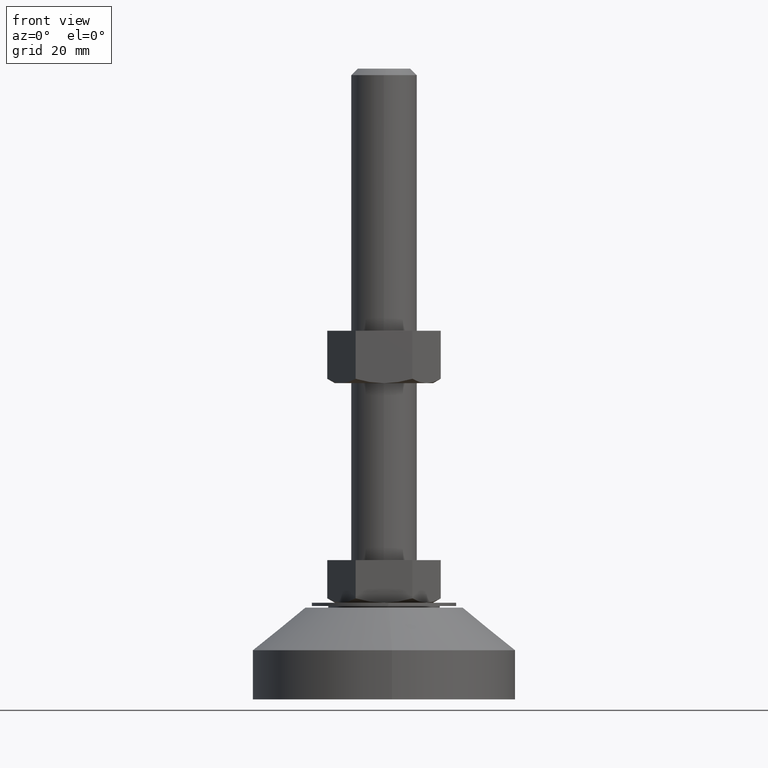
[diagram: clean part render]
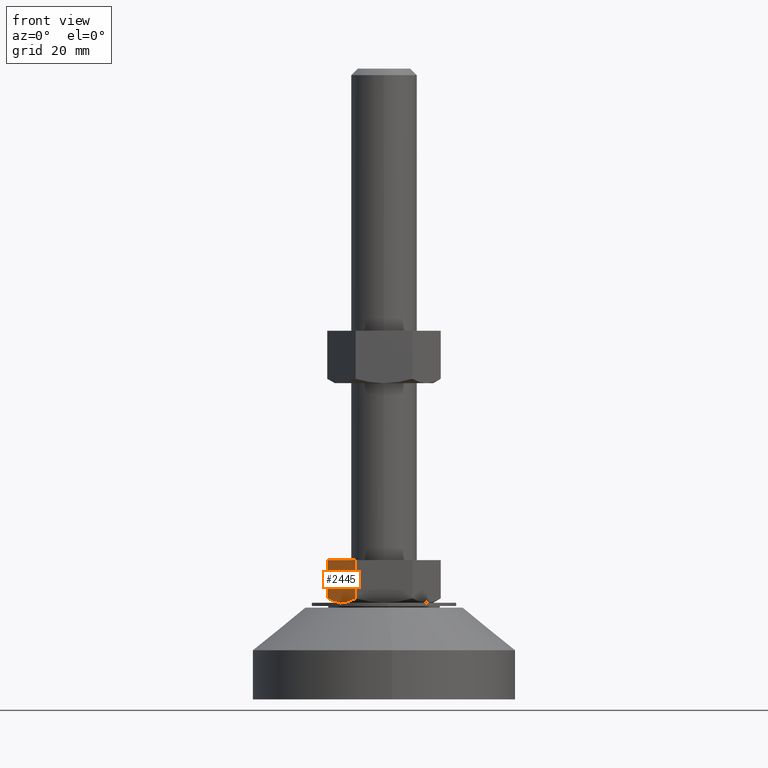
[diagram: same view with one face highlighted and labeled with its STEP entity id]
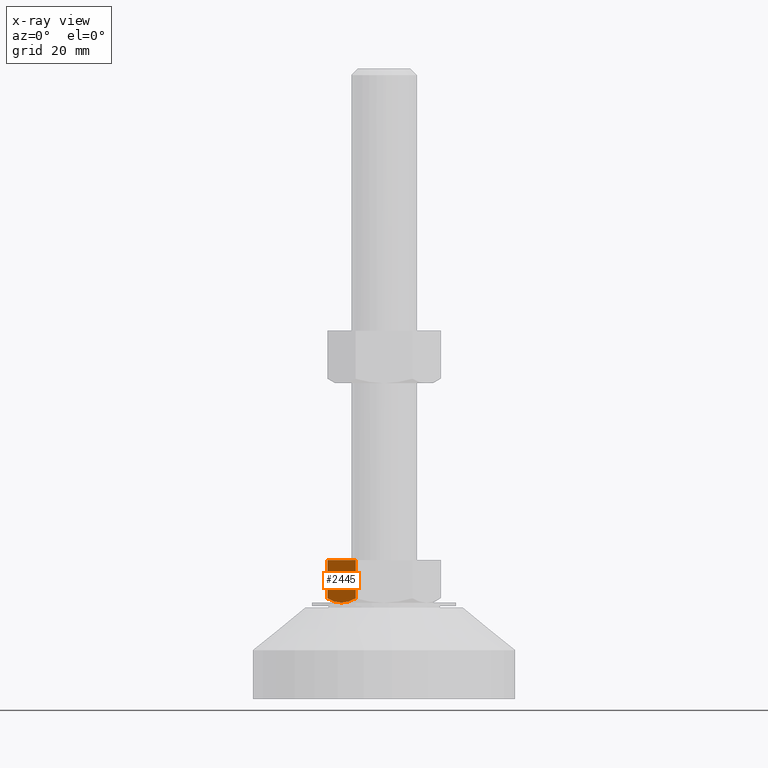
[diagram: x-ray of the same camera — body ghosted, the highlighted face saturated]
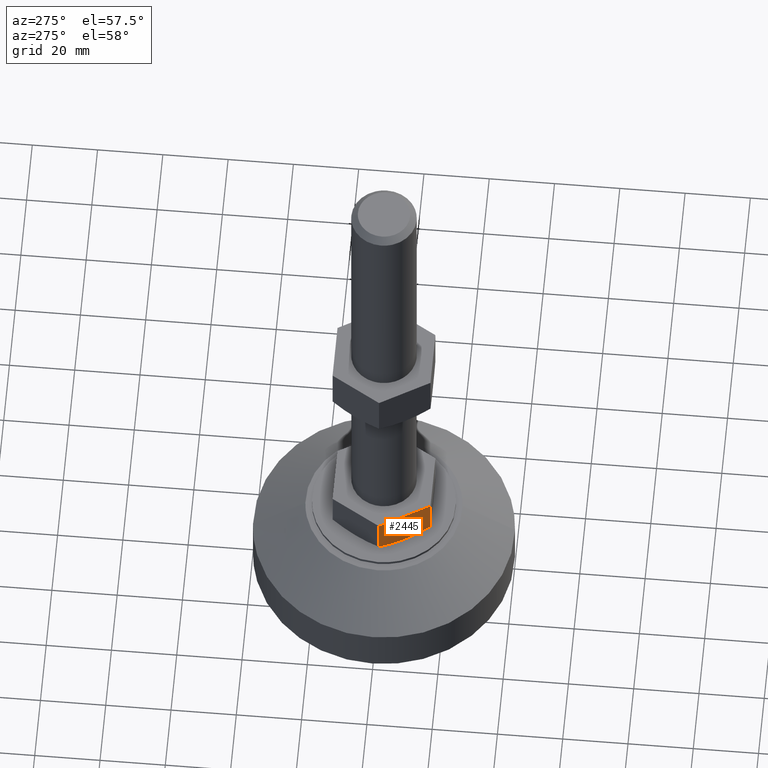
[diagram: same view with one face highlighted and labeled with its STEP entity id]
A machine part, front view. The second image highlights one B-rep face of the part: STEP entity #2445.
The next image is the same camera in x-ray: the body ghosted, the highlighted face saturated — about 0% of this face is hidden behind the body in this view.
A second angle (auxiliary view) of the same face is appended — the face is thin or edge-on in the first view.
In plain terms, the highlighted face is a freeform B-spline surface patch.
Its self-contained STEP definition (entity closure, byte-faithful):
#2214=CARTESIAN_POINT('',(-17.320508075689450,-5.684342E-014,42.500000000000000));
#2215=VERTEX_POINT('',#2214);
#2221=CARTESIAN_POINT('',(-8.660254037844871,-15.0,42.500000000000000));
#2222=VERTEX_POINT('',#2221);
#2223=CARTESIAN_POINT('',(-17.320508075689450,-5.684342E-014,42.500000000000000));
#2224=CARTESIAN_POINT('',(-8.660254037844871,-15.0,42.500000000000000));
#2225=QUASI_UNIFORM_CURVE('',1,(#2223,#2224),.UNSPECIFIED.,.F.,.U.);
#2226=EDGE_CURVE('',#2215,#2222,#2225,.T.);
#2357=CARTESIAN_POINT('',(-17.320508075688949,0.0,30.839745962165050));
#2358=VERTEX_POINT('',#2357);
#2374=CARTESIAN_POINT('',(-17.320508075689450,-5.684342E-014,42.500000000000000));
#2375=CARTESIAN_POINT('',(-17.320508075688949,0.0,30.839745962165050));
#2376=QUASI_UNIFORM_CURVE('',1,(#2374,#2375),.UNSPECIFIED.,.F.,.U.);
#2377=EDGE_CURVE('',#2215,#2358,#2376,.T.);
#2399=CARTESIAN_POINT('',(-8.227674365439791,-15.749249970927140,28.850650025196529));
#2400=CARTESIAN_POINT('',(-17.753087980380482,0.749250373258482,28.850650025196529));
#2401=CARTESIAN_POINT('',(-8.227674365439791,-15.749249970927140,43.149350323490637));
#2402=CARTESIAN_POINT('',(-17.753087980380482,0.749250373258482,43.149350323490637));
#2403=B_SPLINE_SURFACE_WITH_KNOTS('',1,1,((#2399,#2401),(#2400,#2402)),.UNSPECIFIED.,.F.,.F.,.U.,(2,2),(2,2),(0.0,19.050827229881399),(0.0,14.298700298294120),.UNSPECIFIED.);
#2404=CARTESIAN_POINT('',(-8.660254037844780,-15.0,30.839745962165050));
#2405=VERTEX_POINT('',#2404);
#2406=CARTESIAN_POINT('',(-12.990381056766960,-7.500000000000200,29.500000000000000));
#2407=VERTEX_POINT('',#2406);
#2408=CARTESIAN_POINT('',(-8.660254037844780,-15.0,30.839745962165050));
#2409=CARTESIAN_POINT('',(-9.367281759441104,-13.775392063835710,30.431543316767598));
#2410=CARTESIAN_POINT('',(-10.079464158776061,-12.541855963931241,30.095110476246081));
#2411=CARTESIAN_POINT('',(-11.158877247785840,-10.672257651411440,29.745558985832080));
#2412=CARTESIAN_POINT('',(-11.520542644587970,-10.045834808810600,29.654953438834660));
#2413=CARTESIAN_POINT('',(-12.248085348084780,-8.785693881678091,29.532385768631901));
#2414=CARTESIAN_POINT('',(-12.613966294297139,-8.151969493316919,29.500474319297190));
#2415=CARTESIAN_POINT('',(-12.984863898330749,-7.509555998725135,29.500001757459199));
#2416=CARTESIAN_POINT('',(-12.987622414444330,-7.504778108662920,29.500000000563158));
#2417=CARTESIAN_POINT('',(-12.990381056818871,-7.499999999910290,29.500000001628660));
#2418=B_SPLINE_CURVE_WITH_KNOTS('',3,(#2408,#2409,#2410,#2411,#2412,#2413,#2414,#2415,#2416,#2417),.UNSPECIFIED.,.F.,.U.,(4,2,2,2,4),(0.0,0.250000000000001,0.375000000000002,0.500000000000002,0.500936598769620),.UNSPECIFIED.);
#2419=EDGE_CURVE('',#2405,#2407,#2418,.T.);
#2420=ORIENTED_EDGE('',*,*,#2419,.F.);
#2421=CARTESIAN_POINT('',(-8.660254037844871,-15.0,42.500000000000000));
#2422=CARTESIAN_POINT('',(-8.660254037844780,-15.0,30.839745962165050));
#2423=QUASI_UNIFORM_CURVE('',1,(#2421,#2422),.UNSPECIFIED.,.F.,.U.);
#2424=EDGE_CURVE('',#2222,#2405,#2423,.T.);
#2425=ORIENTED_EDGE('',*,*,#2424,.F.);
#2426=ORIENTED_EDGE('',*,*,#2226,.F.);
#2427=ORIENTED_EDGE('',*,*,#2377,.T.);
#2428=CARTESIAN_POINT('',(-12.990381056766960,-7.500000000000200,29.500000000000000));
#2429=CARTESIAN_POINT('',(-13.079665642688640,-7.345354560851112,29.500000036116631));
#2430=CARTESIAN_POINT('',(-13.169082489209680,-7.190480039624087,29.501841569814950));
#2431=CARTESIAN_POINT('',(-13.350949418786691,-6.875477277380155,29.509347877224972));
#2432=CARTESIAN_POINT('',(-13.443259380414659,-6.715591733795771,29.515126012679989));
#2433=CARTESIAN_POINT('',(-13.719504512123731,-6.237121130332102,29.538242611801760));
#2434=CARTESIAN_POINT('',(-13.903028081745759,-5.919248983360334,29.561379370472139));
#2435=CARTESIAN_POINT('',(-14.451762310556880,-4.968813419207357,29.652963666496252));
#2436=CARTESIAN_POINT('',(-14.815132196112190,-4.339438315485085,29.743637065374529));
#2437=CARTESIAN_POINT('',(-15.898772554322409,-2.462518157932841,30.093768839119509));
#2438=CARTESIAN_POINT('',(-16.612598936100309,-1.226134596910459,30.431034429852449));
#2439=CARTESIAN_POINT('',(-17.320508075689190,-1.304816E-013,30.839745962165011));
#2440=B_SPLINE_CURVE_WITH_KNOTS('',3,(#2428,#2429,#2430,#2431,#2432,#2433,#2434,#2435,#2436,#2437,#2438,#2439),.UNSPECIFIED.,.F.,.U.,(4,2,2,2,2,4),(0.500936598791461,0.531250000000002,0.562500000000002,0.625000000000002,0.750000000000001,1.0),.UNSPECIFIED.);
#2441=EDGE_CURVE('',#2407,#2358,#2440,.T.);
#2442=ORIENTED_EDGE('',*,*,#2441,.F.);
#2443=EDGE_LOOP('',(#2420,#2425,#2426,#2427,#2442));
#2444=FACE_OUTER_BOUND('',#2443,.T.);
#2445=ADVANCED_FACE('',(#2444),#2403,.F.);